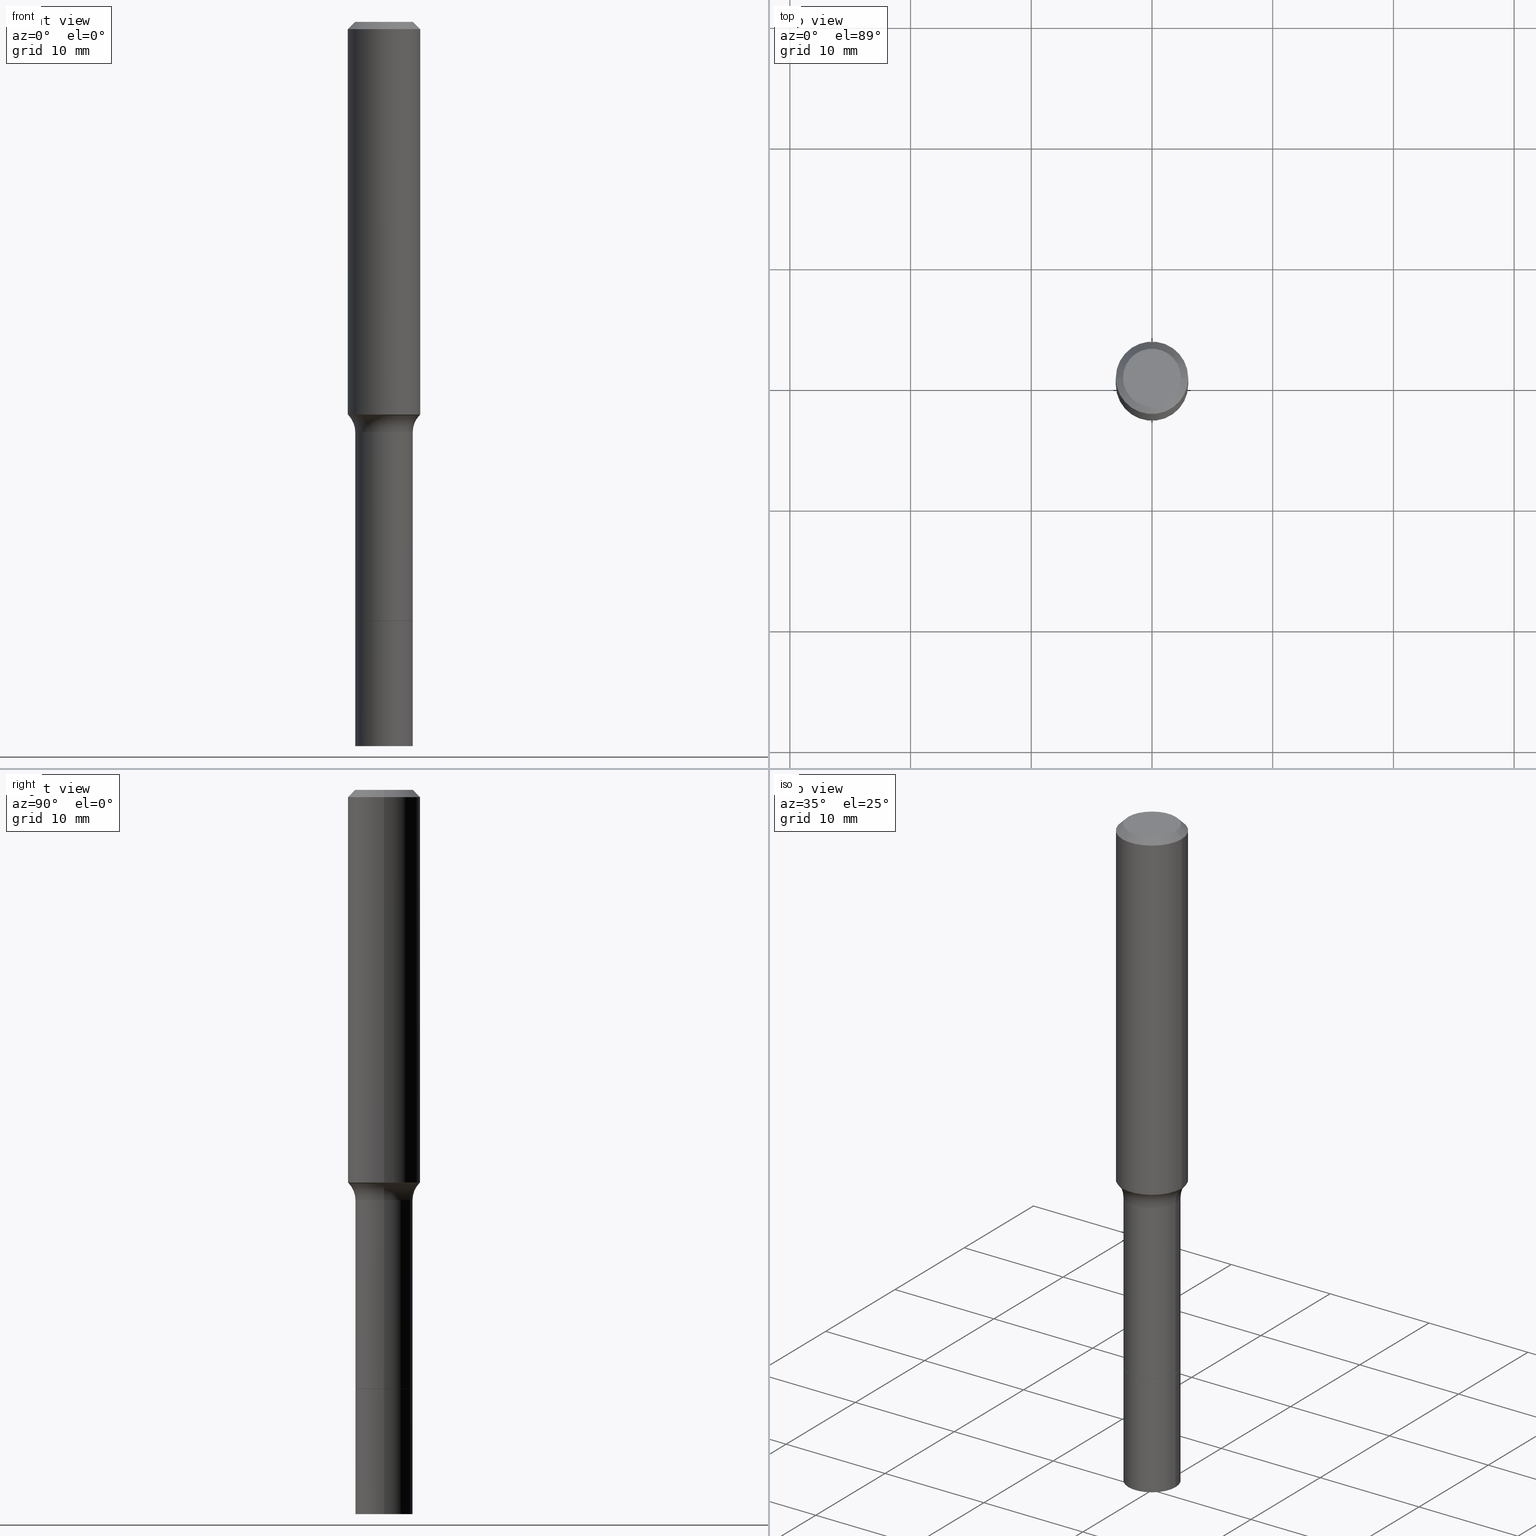
[diagram: canonical four-view strip — front | top / right | iso, engineering-drawing reading convention]
A machine part, canonical four-view strip (front | top / right | iso — engineering-drawing reading convention). The complete STEP part file that produces these views, byte-faithful:
ISO-10303-21;
HEADER;
FILE_DESCRIPTION (( 'STEP AP203' ),
    '1' );
FILE_NAME ('58502.STEP',
    '2025-04-01T15:24:02',
    ( '' ),
    ( '' ),
    'SwSTEP 2.0',
    'SolidWorks 2024',
    '' );
FILE_SCHEMA (( 'CONFIG_CONTROL_DESIGN' ));
ENDSEC;

DATA;
#1 = CALENDAR_DATE ( 2025, 1, 4 ) ;
#2 = ORIENTED_EDGE ( 'NONE', *, *, #451, .T. ) ;
#3 = APPLICATION_PROTOCOL_DEFINITION ( 'international standard', 'config_control_design', 1994, #499 ) ;
#4 = CIRCLE ( 'NONE', #76, 0.1152417038704663249 ) ;
#5 = EDGE_CURVE ( 'NONE', #223, #299, #167, .T. ) ;
#6 = SHAPE_DEFINITION_REPRESENTATION ( #363, #301 ) ;
#7 = CYLINDRICAL_SURFACE ( 'NONE', #48, 0.09374999999999997224 ) ;
#8 = DIRECTION ( 'NONE',  ( -2.445468806185136597E-29, 3.491481338843145583E-15, 1.000000000000000000 ) ) ;
#9 = DATE_AND_TIME ( #490, #508 ) ;
#10 =( NAMED_UNIT ( * ) PLANE_ANGLE_UNIT ( ) SI_UNIT ( $, .RADIAN. ) );
#11 = ORGANIZATION ( 'UNSPECIFIED', 'UNSPECIFIED', '' ) ;
#12 = DIRECTION ( 'NONE',  ( 1.000000000000000000, -6.982962677686261189E-15, 0.000000000000000000 ) ) ;
#13 = EDGE_CURVE ( 'NONE', #299, #155, #233, .T. ) ;
#14 = MANIFOLD_SOLID_BREP ( 'Body-Move/Copy2[2]', #110 ) ;
#15 = DIRECTION ( 'NONE',  ( -2.445468806185136597E-29, 3.491481338843145583E-15, 1.000000000000000000 ) ) ;
#16 = VECTOR ( 'NONE', #113, 39.37007874015748143 ) ;
#17 = CC_DESIGN_DATE_AND_TIME_ASSIGNMENT ( #120, #357, ( #410 ) ) ;
#18 = DIRECTION ( 'NONE',  ( -2.445468806185136597E-29, 3.491481338843145583E-15, 1.000000000000000000 ) ) ;
#19 = EDGE_CURVE ( 'NONE', #376, #143, #399, .T. ) ;
#20 = DIRECTION ( 'NONE',  ( 1.000000000000000000, -6.982962677686264344E-15, 0.000000000000000000 ) ) ;
#21 = CARTESIAN_POINT ( 'NONE',  ( 4.776489672240809845E-29, -6.819561351028432909E-15, -1.953200000000000269 ) ) ;
#22 = ORIENTED_EDGE ( 'NONE', *, *, #406, .T. ) ;
#23 = VERTEX_POINT ( 'NONE', #414 ) ;
#24 = TOROIDAL_SURFACE ( 'NONE', #338, 0.1737499999999999323, 0.07999999999999993228 ) ;
#25 = VECTOR ( 'NONE', #266, 39.37007874015748143 ) ;
#26 = DIRECTION ( 'NONE',  ( -2.445468806185136597E-29, 3.491481338843145583E-15, 1.000000000000000000 ) ) ;
#27 = ORIENTED_EDGE ( 'NONE', *, *, #147, .T. ) ;
#28 = LINE ( 'NONE', #343, #145 ) ;
#29 = EDGE_CURVE ( 'NONE', #341, #238, #459, .T. ) ;
#30 = DIRECTION ( 'NONE',  ( 1.000000000000000000, -6.982962677686273021E-15, 0.000000000000000000 ) ) ;
#31 = ORIENTED_EDGE ( 'NONE', *, *, #269, .T. ) ;
#32 = CARTESIAN_POINT ( 'NONE',  ( 4.776489672240809284E-29, -6.819561351028432120E-15, -1.953200000000000047 ) ) ;
#33 = ADVANCED_FACE ( 'NONE', ( #138 ), #81, .T. ) ;
#34 = CARTESIAN_POINT ( 'NONE',  ( 5.776686413970529753E-29, -8.247577218615279626E-15, -2.362200000000000077 ) ) ;
#35 = CIRCLE ( 'NONE', #187, 0.09324999999999998568 ) ;
#36 = EDGE_LOOP ( 'NONE', ( #427, #344, #117, #191 ) ) ;
#37 = DIRECTION ( 'NONE',  ( 1.000000000000000000, -6.982962677686269077E-15, 4.883557194083113462E-29 ) ) ;
#38 = CIRCLE ( 'NONE', #97, 0.09374999999999994449 ) ;
#39 = DIRECTION ( 'NONE',  ( -2.445468806185136597E-29, 3.491481338843145583E-15, 1.000000000000000000 ) ) ;
#40 = EDGE_LOOP ( 'NONE', ( #476, #303, #472, #308 ) ) ;
#41 = DIRECTION ( 'NONE',  ( 1.000000000000000000, -6.982962677686266711E-15, 0.000000000000000000 ) ) ;
#42 = PERSON_AND_ORGANIZATION ( #182, #11 ) ;
#43 = VERTEX_POINT ( 'NONE', #377 ) ;
#44 = DIRECTION ( 'NONE',  ( 1.000000000000000000, 0.000000000000000000, 0.000000000000000000 ) ) ;
#45 = CONICAL_SURFACE ( 'NONE', #163, 0.09324999999999998568, 0.7853981633972946241 ) ;
#46 =( CONVERSION_BASED_UNIT ( 'INCH', #203 ) LENGTH_UNIT ( ) NAMED_UNIT ( #318 ) );
#47 = EDGE_CURVE ( 'NONE', #480, #64, #139, .T. ) ;
#48 = AXIS2_PLACEMENT_3D ( 'NONE', #281, #206, #329 ) ;
#49 = PERSON_AND_ORGANIZATION ( #182, #11 ) ;
#50 = FACE_OUTER_BOUND ( 'NONE', #498, .T. ) ;
#51 = FACE_OUTER_BOUND ( 'NONE', #219, .T. ) ;
#52 = ADVANCED_FACE ( 'NONE', ( #353 ), #188, .T. ) ;
#53 = CALENDAR_DATE ( 2025, 1, 4 ) ;
#54 = CIRCLE ( 'NONE', #135, 0.07999999999999993228 ) ;
#55 = CARTESIAN_POINT ( 'NONE',  ( 0.1180999999999999966, -9.071566814582237199E-16, -0.02362000000000014435 ) ) ;
#56 = PRODUCT ( '58502', '58502', '', ( #362 ) ) ;
#57 = PERSON_AND_ORGANIZATION_ROLE ( 'creator' ) ;
#58 = DIRECTION ( 'NONE',  ( -2.445468806185136597E-29, 3.491481338843145583E-15, 1.000000000000000000 ) ) ;
#59 = EDGE_CURVE ( 'NONE', #430, #341, #217, .T. ) ;
#60 = CARTESIAN_POINT ( 'NONE',  ( 5.776686413970529753E-29, -8.247577218615279626E-15, -2.362200000000000077 ) ) ;
#61 = VERTEX_POINT ( 'NONE', #307 ) ;
#62 = EDGE_CURVE ( 'NONE', #43, #23, #127, .T. ) ;
#63 = CYLINDRICAL_SURFACE ( 'NONE', #457, 0.1181000000000000660 ) ;
#64 = VERTEX_POINT ( 'NONE', #270 ) ;
#65 = EDGE_LOOP ( 'NONE', ( #22, #422 ) ) ;
#66 = EDGE_LOOP ( 'NONE', ( #469, #396, #297, #227 ) ) ;
#67 = APPROVAL_PERSON_ORGANIZATION ( #124, #204, #447 ) ;
#68 = ORIENTED_EDGE ( 'NONE', *, *, #375, .T. ) ;
#69 = DIRECTION ( 'NONE',  ( -2.445468806185136597E-29, 3.491481338843145583E-15, 1.000000000000000000 ) ) ;
#70 = DIRECTION ( 'NONE',  ( 1.000000000000000000, -6.982962677686263555E-15, 0.000000000000000000 ) ) ;
#71 = ORIENTED_EDGE ( 'NONE', *, *, #192, .F. ) ;
#72 = DIRECTION ( 'NONE',  ( -2.445468806185136597E-29, 3.491481338843145583E-15, 1.000000000000000000 ) ) ;
#73 = CARTESIAN_POINT ( 'NONE',  ( -0.1152417038704663249, -3.662964008439745871E-15, -1.283640131195000089 ) ) ;
#74 = ORIENTED_EDGE ( 'NONE', *, *, #474, .F. ) ;
#75 = CYLINDRICAL_SURFACE ( 'NONE', #157, 0.1181000000000000660 ) ;
#76 = AXIS2_PLACEMENT_3D ( 'NONE', #95, #15, #205 ) ;
#77 = EDGE_LOOP ( 'NONE', ( #189, #272, #222, #355 ) ) ;
#78 = FACE_OUTER_BOUND ( 'NONE', #101, .T. ) ;
#79 = COORDINATED_UNIVERSAL_TIME_OFFSET ( 5, 0, .BEHIND. ) ;
#80 = ORIENTED_EDGE ( 'NONE', *, *, #435, .T. ) ;
#81 = CONICAL_SURFACE ( 'NONE', #515, 0.1180999999999999966, 0.7853981633974461696 ) ;
#82 = CARTESIAN_POINT ( 'NONE',  ( -0.1152417038704663388, -3.662964008439745082E-15, -1.283640131195000089 ) ) ;
#83 = EDGE_CURVE ( 'NONE', #61, #505, #425, .T. ) ;
#84 = CARTESIAN_POINT ( 'NONE',  ( 4.776489672240809845E-29, -6.819561351028432909E-15, -1.953200000000000269 ) ) ;
#85 = AXIS2_PLACEMENT_3D ( 'NONE', #494, #87, #248 ) ;
#86 = APPROVAL_STATUS ( 'not_yet_approved' ) ;
#87 = DIRECTION ( 'NONE',  ( -2.445468806185136597E-29, 3.491481338843145583E-15, 1.000000000000000000 ) ) ;
#88 = COORDINATED_UNIVERSAL_TIME_OFFSET ( 5, 0, .BEHIND. ) ;
#89 = CARTESIAN_POINT ( 'NONE',  ( -0.09447999999999998066, 7.009847083995354710E-16, -3.085620075132147757E-17 ) ) ;
#90 = APPROVAL_DATE_TIME ( #449, #204 ) ;
#91 = VECTOR ( 'NONE', #300, 39.37007874015748143 ) ;
#92 = DIRECTION ( 'NONE',  ( 1.000000000000000000, -6.982962677686266711E-15, 4.876176775795936353E-29 ) ) ;
#93 = EDGE_CURVE ( 'NONE', #430, #155, #511, .T. ) ;
#94 = CARTESIAN_POINT ( 'NONE',  ( 0.09447999999999998066, -7.704367267948738690E-16, -3.085620075131172158E-17 ) ) ;
#95 = CARTESIAN_POINT ( 'NONE',  ( 3.139101899204769565E-29, -4.481805563857510262E-15, -1.283640131195000089 ) ) ;
#96 = LOCAL_TIME ( 11, 24, 2.000000000000000000, #88 ) ;
#97 = AXIS2_PLACEMENT_3D ( 'NONE', #409, #18, #450 ) ;
#98 = CARTESIAN_POINT ( 'NONE',  ( 0.1181000000000000660, -8.246878922347485584E-16, 5.758764772215003944E-30 ) ) ;
#99 = AXIS2_PLACEMENT_3D ( 'NONE', #400, #332, #402 ) ;
#100 = DIRECTION ( 'NONE',  ( 1.000000000000000000, -6.982962677686266711E-15, 4.876176775795935793E-29 ) ) ;
#101 = EDGE_LOOP ( 'NONE', ( #121, #513 ) ) ;
#102 = FACE_OUTER_BOUND ( 'NONE', #393, .T. ) ;
#103 = LOCAL_TIME ( 11, 24, 2.000000000000000000, #289 ) ;
#104 = ORIENTED_EDGE ( 'NONE', *, *, #47, .T. ) ;
#105 = CC_DESIGN_APPROVAL ( #126, ( #410 ) ) ;
#106 = EDGE_CURVE ( 'NONE', #505, #430, #426, .T. ) ;
#107 = ORIENTED_EDGE ( 'NONE', *, *, #269, .F. ) ;
#108 = LINE ( 'NONE', #337, #91 ) ;
#109 = CARTESIAN_POINT ( 'NONE',  ( -0.1181000000000000660, 8.391509709326787887E-16, -5.809262341591047287E-30 ) ) ;
#110 = CLOSED_SHELL ( 'NONE', ( #423, #141, #417, #201, #386, #52, #482, #350, #224, #131, #33, #456, #330, #503 ) ) ;
#111 = ORIENTED_EDGE ( 'NONE', *, *, #83, .F. ) ;
#112 = CC_DESIGN_PERSON_AND_ORGANIZATION_ASSIGNMENT ( #271, #475, ( #410 ) ) ;
#113 = DIRECTION ( 'NONE',  ( -0.7071067811865460184, 2.468850131082241283E-15, -0.7071067811865490160 ) ) ;
#114 = ORIENTED_EDGE ( 'NONE', *, *, #292, .T. ) ;
#115 = DIRECTION ( 'NONE',  ( -2.445468806185136597E-29, 3.491481338843145583E-15, 1.000000000000000000 ) ) ;
#116 = APPROVAL_DATE_TIME ( #9, #408 ) ;
#117 = ORIENTED_EDGE ( 'NONE', *, *, #512, .T. ) ;
#118 = DIRECTION ( 'NONE',  ( 2.438088387897960049E-29, -3.491481338843145188E-15, -1.000000000000000000 ) ) ;
#119 = UNCERTAINTY_MEASURE_WITH_UNIT (LENGTH_MEASURE( 1.000000000000000082E-05 ), #46, 'distance_accuracy_value', 'NONE');
#120 = DATE_AND_TIME ( #162, #253 ) ;
#121 = ORIENTED_EDGE ( 'NONE', *, *, #258, .F. ) ;
#122 = PRODUCT_RELATED_PRODUCT_CATEGORY ( 'detail', '', ( #56 ) ) ;
#123 = AXIS2_PLACEMENT_3D ( 'NONE', #160, #486, #44 ) ;
#124 = PERSON_AND_ORGANIZATION ( #182, #11 ) ;
#125 = CARTESIAN_POINT ( 'NONE',  ( -0.1180999999999999966, -1.437635253250308379E-15, -0.02362000000000014435 ) ) ;
#126 = APPROVAL ( #436, 'UNSPECIFIED' ) ;
#127 = CIRCLE ( 'NONE', #194, 0.09375000000000001388 ) ;
#128 = DIRECTION ( 'NONE',  ( -2.445468806185136597E-29, 3.491481338843145583E-15, 1.000000000000000000 ) ) ;
#129 = DIRECTION ( 'NONE',  ( 1.000000000000000000, -6.982962677686263555E-15, 0.000000000000000000 ) ) ;
#130 = AXIS2_PLACEMENT_3D ( 'NONE', #347, #268, #196 ) ;
#131 = ADVANCED_FACE ( 'NONE', ( #312 ), #75, .T. ) ;
#132 = FACE_OUTER_BOUND ( 'NONE', #146, .T. ) ;
#133 = EDGE_LOOP ( 'NONE', ( #468, #181, #71, #339 ) ) ;
#134 = EDGE_CURVE ( 'NONE', #466, #302, #171, .T. ) ;
#135 = AXIS2_PLACEMENT_3D ( 'NONE', #420, #317, #506 ) ;
#136 = CIRCLE ( 'NONE', #434, 0.1180999999999999966 ) ;
#137 = CARTESIAN_POINT ( 'NONE',  ( 0.000000000000000000, 0.000000000000000000, 0.000000000000000000 ) ) ;
#138 = FACE_OUTER_BOUND ( 'NONE', #40, .T. ) ;
#139 = CIRCLE ( 'NONE', #440, 0.09374999999999994449 ) ;
#140 = CARTESIAN_POINT ( 'NONE',  ( -0.1181000000000001493, -3.631952688209820286E-15, -1.280574983861703320 ) ) ;
#141 = ADVANCED_FACE ( 'NONE', ( #132 ), #306, .T. ) ;
#142 = DIRECTION ( 'NONE',  ( -2.445468806185136597E-29, 3.491481338843145583E-15, 1.000000000000000000 ) ) ;
#143 = VERTEX_POINT ( 'NONE', #293 ) ;
#144 = FACE_OUTER_BOUND ( 'NONE', #418, .T. ) ;
#145 = VECTOR ( 'NONE', #154, 39.37007874015748143 ) ;
#146 = EDGE_LOOP ( 'NONE', ( #358, #114, #441, #198 ) ) ;
#147 = EDGE_CURVE ( 'NONE', #64, #480, #38, .T. ) ;
#148 = ORIENTED_EDGE ( 'NONE', *, *, #93, .F. ) ;
#149 = DIRECTION ( 'NONE',  ( -2.445468806185136597E-29, 3.491481338843145583E-15, 1.000000000000000000 ) ) ;
#150 = DIRECTION ( 'NONE',  ( -2.445468806185136597E-29, 3.491481338843145583E-15, 1.000000000000000000 ) ) ;
#151 = ORIENTED_EDGE ( 'NONE', *, *, #59, .T. ) ;
#152 = DIRECTION ( 'NONE',  ( -2.445468806185136597E-29, 3.491481338843145583E-15, 1.000000000000000000 ) ) ;
#153 = VERTEX_POINT ( 'NONE', #331 ) ;
#154 = DIRECTION ( 'NONE',  ( 0.6819983600624985876, -2.208861293262476197E-15, 0.7313537016191703488 ) ) ;
#155 = VERTEX_POINT ( 'NONE', #125 ) ;
#156 = DIRECTION ( 'NONE',  ( -2.445468806185136877E-29, 3.491481338843145188E-15, 1.000000000000000000 ) ) ;
#157 = AXIS2_PLACEMENT_3D ( 'NONE', #137, #213, #92 ) ;
#158 = PERSON_AND_ORGANIZATION ( #182, #11 ) ;
#159 = DIRECTION ( 'NONE',  ( -2.445468806185136877E-29, 3.491481338843145188E-15, 1.000000000000000000 ) ) ;
#160 = CARTESIAN_POINT ( 'NONE',  ( 0.000000000000000000, 0.000000000000000000, 0.000000000000000000 ) ) ;
#161 = CARTESIAN_POINT ( 'NONE',  ( 5.776197320209328408E-31, -8.246878922347560526E-17, -0.02362000000000014435 ) ) ;
#162 = CALENDAR_DATE ( 2025, 1, 4 ) ;
#163 = AXIS2_PLACEMENT_3D ( 'NONE', #84, #442, #401 ) ;
#164 = PERSON_AND_ORGANIZATION_ROLE ( 'design_owner' ) ;
#165 = LINE ( 'NONE', #328, #360 ) ;
#166 = CARTESIAN_POINT ( 'NONE',  ( -0.09324999999999998568, -6.154331022758027105E-15, -1.953200000000000269 ) ) ;
#167 = CIRCLE ( 'NONE', #340, 0.09447999999999998066 ) ;
#168 = CARTESIAN_POINT ( 'NONE',  ( 4.775266937837716483E-29, -6.817815610359010617E-15, -1.952700000000000102 ) ) ;
#169 = FACE_OUTER_BOUND ( 'NONE', #384, .T. ) ;
#170 = PRODUCT_DEFINITION_FORMATION_WITH_SPECIFIED_SOURCE ( 'ANY', '', #56, .NOT_KNOWN. ) ;
#171 = CIRCLE ( 'NONE', #489, 0.09375000000000001388 ) ;
#172 = DIRECTION ( 'NONE',  ( 1.000000000000000000, -6.982962677686269077E-15, 0.000000000000000000 ) ) ;
#173 = DIRECTION ( 'NONE',  ( -2.445468806185136597E-29, 3.491481338843145583E-15, 1.000000000000000000 ) ) ;
#174 = ADVANCED_FACE ( 'NONE', ( #285 ), #453, .T. ) ;
#175 = ORIENTED_EDGE ( 'NONE', *, *, #106, .T. ) ;
#176 = AXIS2_PLACEMENT_3D ( 'NONE', #21, #173, #356 ) ;
#177 = VECTOR ( 'NONE', #387, 39.37007874015748143 ) ;
#178 = DIRECTION ( 'NONE',  ( -2.445468806185136877E-29, 3.491481338843145188E-15, 1.000000000000000000 ) ) ;
#179 = EDGE_CURVE ( 'NONE', #341, #430, #373, .T. ) ;
#180 = DIRECTION ( 'NONE',  ( 1.000000000000000000, -6.982962677686264344E-15, 0.000000000000000000 ) ) ;
#181 = ORIENTED_EDGE ( 'NONE', *, *, #93, .T. ) ;
#182 = PERSON ( 'UNSPECIFIED', 'UNSPECIFIED', 'UNSPECIFIED', ('UNSPECIFIED'), ('UNSPECIFIED'), ('UNSPECIFIED') ) ;
#183 = CARTESIAN_POINT ( 'NONE',  ( 5.776686413970529753E-29, -8.247577218615279626E-15, -2.362200000000000077 ) ) ;
#184 = DIRECTION ( 'NONE',  ( -2.445468806185136597E-29, 3.491481338843145583E-15, 1.000000000000000000 ) ) ;
#185 = EDGE_LOOP ( 'NONE', ( #107, #68, #104, #74 ) ) ;
#186 = PLANE ( 'NONE',  #487 ) ;
#187 = AXIS2_PLACEMENT_3D ( 'NONE', #455, #324, #172 ) ;
#188 = CYLINDRICAL_SURFACE ( 'NONE', #249, 0.09374999999999997224 ) ;
#189 = ORIENTED_EDGE ( 'NONE', *, *, #19, .T. ) ;
#190 = CARTESIAN_POINT ( 'NONE',  ( 4.776489672240809845E-29, -6.819561351028432909E-15, -1.953200000000000269 ) ) ;
#191 = ORIENTED_EDGE ( 'NONE', *, *, #243, .F. ) ;
#192 = EDGE_CURVE ( 'NONE', #238, #155, #136, .T. ) ;
#193 = PERSON_AND_ORGANIZATION ( #182, #11 ) ;
#194 = AXIS2_PLACEMENT_3D ( 'NONE', #504, #142, #464 ) ;
#195 = ORIENTED_EDGE ( 'NONE', *, *, #474, .T. ) ;
#196 = DIRECTION ( 'NONE',  ( 1.000000000000000000, -6.982962677686267499E-15, 0.000000000000000000 ) ) ;
#197 = PERSON_AND_ORGANIZATION_ROLE ( 'design_supplier' ) ;
#198 = ORIENTED_EDGE ( 'NONE', *, *, #13, .F. ) ;
#199 = CC_DESIGN_PERSON_AND_ORGANIZATION_ASSIGNMENT ( #445, #164, ( #56 ) ) ;
#200 = DATE_AND_TIME ( #247, #103 ) ;
#201 = ADVANCED_FACE ( 'NONE', ( #169 ), #413, .T. ) ;
#202 = DATE_AND_TIME ( #1, #210 ) ;
#203 = LENGTH_MEASURE_WITH_UNIT ( LENGTH_MEASURE( 0.02539999999999999897 ), #321 );
#204 = APPROVAL ( #86, 'UNSPECIFIED' ) ;
#205 = DIRECTION ( 'NONE',  ( 1.000000000000000000, -6.982962677686263555E-15, 0.000000000000000000 ) ) ;
#206 = DIRECTION ( 'NONE',  ( -2.445468806185136597E-29, 3.491481338843145583E-15, 1.000000000000000000 ) ) ;
#207 = LINE ( 'NONE', #369, #310 ) ;
#208 = AXIS2_PLACEMENT_3D ( 'NONE', #60, #128, #448 ) ;
#209 = CARTESIAN_POINT ( 'NONE',  ( -0.09374999999999997224, 6.661338147750937270E-16, -4.611501647113972594E-30 ) ) ;
#210 = LOCAL_TIME ( 11, 24, 2.000000000000000000, #315 ) ;
#211 = DIRECTION ( 'NONE',  ( -2.445468806185136597E-29, 3.491481338843145583E-15, 1.000000000000000000 ) ) ;
#212 = AXIS2_PLACEMENT_3D ( 'NONE', #416, #26, #180 ) ;
#213 = DIRECTION ( 'NONE',  ( -2.445468806185136597E-29, 3.491481338843145583E-15, 1.000000000000000000 ) ) ;
#214 = DIRECTION ( 'NONE',  ( 1.000000000000000000, -6.982962677686261189E-15, 0.000000000000000000 ) ) ;
#215 = CC_DESIGN_APPROVAL ( #204, ( #218 ) ) ;
#216 = DIRECTION ( 'NONE',  ( 1.000000000000000000, -6.982962677686266711E-15, 4.876176775795936353E-29 ) ) ;
#217 = CIRCLE ( 'NONE', #212, 0.1181000000000001493 ) ;
#218 = PRODUCT_DEFINITION ( 'UNKNOWN', '', #170, #439 ) ;
#219 = EDGE_LOOP ( 'NONE', ( #351, #31, #2, #226 ) ) ;
#220 = DIRECTION ( 'NONE',  ( 2.445468806185136597E-29, -3.491481338843145583E-15, -1.000000000000000000 ) ) ;
#221 = VECTOR ( 'NONE', #156, 39.37007874015748143 ) ;
#222 = ORIENTED_EDGE ( 'NONE', *, *, #62, .F. ) ;
#223 = VERTEX_POINT ( 'NONE', #94 ) ;
#224 = ADVANCED_FACE ( 'NONE', ( #51 ), #444, .T. ) ;
#225 = DIRECTION ( 'NONE',  ( 1.000000000000000000, -6.982962677686267499E-15, 4.875432709231658792E-29 ) ) ;
#226 = ORIENTED_EDGE ( 'NONE', *, *, #59, .F. ) ;
#227 = ORIENTED_EDGE ( 'NONE', *, *, #47, .F. ) ;
#228 = DIRECTION ( 'NONE',  ( 2.438088387897960049E-29, -3.491481338843145188E-15, -1.000000000000000000 ) ) ;
#229 = ORIENTED_EDGE ( 'NONE', *, *, #323, .F. ) ;
#230 = EDGE_LOOP ( 'NONE', ( #320, #381 ) ) ;
#231 = DIRECTION ( 'NONE',  ( 1.000000000000000000, -6.982962677686269077E-15, 4.883557194083113462E-29 ) ) ;
#232 = CIRCLE ( 'NONE', #319, 0.09324999999999998568 ) ;
#233 = LINE ( 'NONE', #421, #16 ) ;
#234 = APPROVAL_ROLE ( '' ) ;
#235 = EDGE_LOOP ( 'NONE', ( #148, #151, #349, #229 ) ) ;
#236 = FACE_OUTER_BOUND ( 'NONE', #133, .T. ) ;
#237 = APPROVAL_ROLE ( '' ) ;
#238 = VERTEX_POINT ( 'NONE', #55 ) ;
#239 = CARTESIAN_POINT ( 'NONE',  ( 0.1737499999999999323, -5.885590092887885113E-15, -1.338200000000000056 ) ) ;
#240 = EDGE_CURVE ( 'NONE', #153, #466, #207, .T. ) ;
#241 = CARTESIAN_POINT ( 'NONE',  ( 3.772893820736570314E-46, -5.386692455541008845E-32, -1.542810037565835988E-17 ) ) ;
#242 = CIRCLE ( 'NONE', #274, 0.09375000000000001388 ) ;
#243 = EDGE_CURVE ( 'NONE', #23, #43, #367, .T. ) ;
#244 = DIRECTION ( 'NONE',  ( 1.000000000000000000, -6.982962677686265133E-15, 0.000000000000000000 ) ) ;
#245 = DIRECTION ( 'NONE',  ( -1.000000000000000000, 6.982962677686266711E-15, 0.000000000000000000 ) ) ;
#246 = CARTESIAN_POINT ( 'NONE',  ( -0.09375000000000001388, -5.078924154224359757E-15, -1.952700000000000102 ) ) ;
#247 = CALENDAR_DATE ( 2025, 1, 4 ) ;
#248 = DIRECTION ( 'NONE',  ( 1.000000000000000000, -6.982962677686267499E-15, 0.000000000000000000 ) ) ;
#249 = AXIS2_PLACEMENT_3D ( 'NONE', #461, #184, #100 ) ;
#250 = LINE ( 'NONE', #492, #296 ) ;
#251 = APPLICATION_CONTEXT ( 'configuration controlled 3d designs of mechanical parts and assemblies' ) ;
#252 = DIRECTION ( 'NONE',  ( -2.445468806185136597E-29, 3.491481338843145583E-15, 1.000000000000000000 ) ) ;
#253 = LOCAL_TIME ( 11, 24, 2.000000000000000000, #275 ) ;
#254 = AXIS2_PLACEMENT_3D ( 'NONE', #364, #370, #245 ) ;
#255 = DIRECTION ( 'NONE',  ( 1.000000000000000000, -6.982962677686266711E-15, 0.000000000000000000 ) ) ;
#256 = ORIENTED_EDGE ( 'NONE', *, *, #395, .T. ) ;
#257 = ORIENTED_EDGE ( 'NONE', *, *, #240, .F. ) ;
#258 = EDGE_CURVE ( 'NONE', #153, #462, #35, .T. ) ;
#259 = ORIENTED_EDGE ( 'NONE', *, *, #435, .F. ) ;
#260 = CARTESIAN_POINT ( 'NONE',  ( 3.272526356436949336E-29, -4.672300327639896745E-15, -1.338200000000000056 ) ) ;
#261 = AXIS2_PLACEMENT_3D ( 'NONE', #32, #118, #470 ) ;
#262 = AXIS2_PLACEMENT_3D ( 'NONE', #183, #228, #385 ) ;
#263 = CARTESIAN_POINT ( 'NONE',  ( 3.139101899204769565E-29, -4.481805563857510262E-15, -1.283640131195000089 ) ) ;
#264 = ORIENTED_EDGE ( 'NONE', *, *, #179, .F. ) ;
#265 = PLANE ( 'NONE',  #325 ) ;
#266 = DIRECTION ( 'NONE',  ( -2.445468806185136877E-29, 3.491481338843145188E-15, 1.000000000000000000 ) ) ;
#267 = ORIENTED_EDGE ( 'NONE', *, *, #258, .T. ) ;
#268 = DIRECTION ( 'NONE',  ( -2.445468806185136597E-29, 3.491481338843145583E-15, 1.000000000000000000 ) ) ;
#269 = EDGE_CURVE ( 'NONE', #505, #61, #4, .T. ) ;
#270 = CARTESIAN_POINT ( 'NONE',  ( 0.09374999999999994449, -5.326953078672984249E-15, -1.338200000000000056 ) ) ;
#271 = PERSON_AND_ORGANIZATION ( #182, #11 ) ;
#272 = ORIENTED_EDGE ( 'NONE', *, *, #287, .T. ) ;
#273 = FACE_OUTER_BOUND ( 'NONE', #77, .T. ) ;
#274 = AXIS2_PLACEMENT_3D ( 'NONE', #168, #290, #214 ) ;
#275 = COORDINATED_UNIVERSAL_TIME_OFFSET ( 5, 0, .BEHIND. ) ;
#276 = EDGE_LOOP ( 'NONE', ( #316, #507 ) ) ;
#277 = CARTESIAN_POINT ( 'NONE',  ( 7.807781452751668233E-30, -1.254164767941989792E-14, -1.953200000000000269 ) ) ;
#278 = APPROVAL_DATE_TIME ( #202, #126 ) ;
#279 = ORIENTED_EDGE ( 'NONE', *, *, #322, .F. ) ;
#280 = CARTESIAN_POINT ( 'NONE',  ( -0.09374999999999994449, -5.078924154224360545E-15, -1.338200000000000056 ) ) ;
#281 = CARTESIAN_POINT ( 'NONE',  ( 0.000000000000000000, 0.000000000000000000, 0.000000000000000000 ) ) ;
#282 = CC_DESIGN_APPROVAL ( #408, ( #170 ) ) ;
#283 = AXIS2_PLACEMENT_3D ( 'NONE', #263, #429, #70 ) ;
#284 =( NAMED_UNIT ( * ) SI_UNIT ( $, .STERADIAN. ) SOLID_ANGLE_UNIT ( ) );
#285 = FACE_OUTER_BOUND ( 'NONE', #36, .T. ) ;
#286 = APPLICATION_PROTOCOL_DEFINITION ( 'international standard', 'config_control_design', 1994, #251 ) ;
#287 = EDGE_CURVE ( 'NONE', #143, #23, #165, .T. ) ;
#288 = CARTESIAN_POINT ( 'NONE',  ( 4.776489672240809284E-29, -6.819561351028432120E-15, -1.953200000000000047 ) ) ;
#289 = COORDINATED_UNIVERSAL_TIME_OFFSET ( 5, 0, .BEHIND. ) ;
#290 = DIRECTION ( 'NONE',  ( -2.445468806185136597E-29, 3.491481338843145583E-15, 1.000000000000000000 ) ) ;
#291 = CARTESIAN_POINT ( 'NONE',  ( 4.775266937837716483E-29, -6.817815610359010617E-15, -1.952700000000000102 ) ) ;
#292 = EDGE_CURVE ( 'NONE', #223, #238, #250, .T. ) ;
#293 = CARTESIAN_POINT ( 'NONE',  ( -0.09375000000000013878, -6.867435470046759977E-15, -2.362200000000000077 ) ) ;
#294 = EDGE_CURVE ( 'NONE', #143, #376, #496, .T. ) ;
#295 = ORIENTED_EDGE ( 'NONE', *, *, #147, .F. ) ;
#296 = VECTOR ( 'NONE', #407, 39.37007874015748143 ) ;
#297 = ORIENTED_EDGE ( 'NONE', *, *, #412, .T. ) ;
#298 = DIRECTION ( 'NONE',  ( -2.445468806185136597E-29, 3.491481338843145583E-15, 1.000000000000000000 ) ) ;
#299 = VERTEX_POINT ( 'NONE', #89 ) ;
#300 = DIRECTION ( 'NONE',  ( -0.7071067811864388819, 7.493145998869961307E-15, 0.7071067811866561525 ) ) ;
#301 = ADVANCED_BREP_SHAPE_REPRESENTATION ( '58502', ( #346, #14, #123 ), #443 ) ;
#302 = VERTEX_POINT ( 'NONE', #246 ) ;
#303 = ORIENTED_EDGE ( 'NONE', *, *, #406, .F. ) ;
#304 = FACE_OUTER_BOUND ( 'NONE', #65, .T. ) ;
#305 = CIRCLE ( 'NONE', #465, 0.09447999999999998066 ) ;
#306 = CONICAL_SURFACE ( 'NONE', #254, 0.1180999999999999966, 0.7853981633974461696 ) ;
#307 = CARTESIAN_POINT ( 'NONE',  ( 0.1152417038704663388, -5.286534080897948923E-15, -1.283640131195000089 ) ) ;
#308 = ORIENTED_EDGE ( 'NONE', *, *, #323, .T. ) ;
#309 = PLANE ( 'NONE',  #261 ) ;
#310 = VECTOR ( 'NONE', #366, 39.37007874015748143 ) ;
#311 = CLOSED_SHELL ( 'NONE', ( #326, #335, #174, #365 ) ) ;
#312 = FACE_OUTER_BOUND ( 'NONE', #235, .T. ) ;
#313 = ORIENTED_EDGE ( 'NONE', *, *, #412, .F. ) ;
#314 = DIRECTION ( 'NONE',  ( -2.438088387897960049E-29, 3.491481338843145188E-15, 1.000000000000000000 ) ) ;
#315 = COORDINATED_UNIVERSAL_TIME_OFFSET ( 5, 0, .BEHIND. ) ;
#316 = ORIENTED_EDGE ( 'NONE', *, *, #19, .F. ) ;
#317 = DIRECTION ( 'NONE',  ( 7.105427357601001859E-15, 1.000000000000000000, -3.491481338843145583E-15 ) ) ;
#318 = DIMENSIONAL_EXPONENTS ( 1.000000000000000000, 0.000000000000000000, 0.000000000000000000, 0.000000000000000000, 0.000000000000000000, 0.000000000000000000, 0.000000000000000000 ) ;
#319 = AXIS2_PLACEMENT_3D ( 'NONE', #190, #69, #424 ) ;
#320 = ORIENTED_EDGE ( 'NONE', *, *, #62, .T. ) ;
#321 =( LENGTH_UNIT ( ) NAMED_UNIT ( * ) SI_UNIT ( $, .METRE. ) );
#322 = EDGE_CURVE ( 'NONE', #302, #466, #242, .T. ) ;
#323 = EDGE_CURVE ( 'NONE', #155, #238, #478, .T. ) ;
#324 = DIRECTION ( 'NONE',  ( -2.445468806185136597E-29, 3.491481338843145583E-15, 1.000000000000000000 ) ) ;
#325 = AXIS2_PLACEMENT_3D ( 'NONE', #241, #481, #361 ) ;
#326 = ADVANCED_FACE ( 'NONE', ( #273 ), #463, .T. ) ;
#327 = CARTESIAN_POINT ( 'NONE',  ( 0.09375000000000001388, -7.472468361392097332E-15, -1.952700000000000102 ) ) ;
#328 = CARTESIAN_POINT ( 'NONE',  ( -0.09375000000000006939, -6.153427536253337407E-15, -1.953200000000000047 ) ) ;
#329 = DIRECTION ( 'NONE',  ( 1.000000000000000000, -6.982962677686266711E-15, 4.876176775795935793E-29 ) ) ;
#330 = ADVANCED_FACE ( 'NONE', ( #78 ), #186, .F. ) ;
#331 = CARTESIAN_POINT ( 'NONE',  ( 0.09324999999999998568, -7.470722620722678195E-15, -1.953200000000000269 ) ) ;
#332 = DIRECTION ( 'NONE',  ( -2.445468806185136597E-29, 3.491481338843145583E-15, 1.000000000000000000 ) ) ;
#333 = VECTOR ( 'NONE', #159, 39.37007874015748143 ) ;
#334 = DIRECTION ( 'NONE',  ( 1.000000000000000000, -6.982962677686266711E-15, 0.000000000000000000 ) ) ;
#335 = ADVANCED_FACE ( 'NONE', ( #510 ), #473, .T. ) ;
#336 = VECTOR ( 'NONE', #178, 39.37007874015748143 ) ;
#337 = CARTESIAN_POINT ( 'NONE',  ( -0.09324999999999998568, -6.156980249932139095E-15, -1.953200000000000269 ) ) ;
#338 = AXIS2_PLACEMENT_3D ( 'NONE', #374, #115, #37 ) ;
#339 = ORIENTED_EDGE ( 'NONE', *, *, #29, .F. ) ;
#340 = AXIS2_PLACEMENT_3D ( 'NONE', #502, #39, #383 ) ;
#341 = VERTEX_POINT ( 'NONE', #514 ) ;
#342 = ORIENTED_EDGE ( 'NONE', *, *, #134, .F. ) ;
#343 = CARTESIAN_POINT ( 'NONE',  ( 0.1152417038704663249, -5.286534080897948923E-15, -1.283640131195000089 ) ) ;
#344 = ORIENTED_EDGE ( 'NONE', *, *, #294, .T. ) ;
#345 = ORIENTED_EDGE ( 'NONE', *, *, #83, .T. ) ;
#346 = MANIFOLD_SOLID_BREP ( 'Body-Move/Copy2[1]', #311 ) ;
#347 = CARTESIAN_POINT ( 'NONE',  ( 4.776489672240809284E-29, -6.819561351028432120E-15, -1.953200000000000047 ) ) ;
#348 = AXIS2_PLACEMENT_3D ( 'NONE', #371, #428, #41 ) ;
#349 = ORIENTED_EDGE ( 'NONE', *, *, #29, .T. ) ;
#350 = ADVANCED_FACE ( 'NONE', ( #102 ), #419, .F. ) ;
#351 = ORIENTED_EDGE ( 'NONE', *, *, #106, .F. ) ;
#352 = CARTESIAN_POINT ( 'NONE',  ( 7.545787641473140628E-46, -1.077338491108201769E-31, -3.085620075131671975E-17 ) ) ;
#353 = FACE_OUTER_BOUND ( 'NONE', #388, .T. ) ;
#354 = APPROVAL_STATUS ( 'not_yet_approved' ) ;
#355 = ORIENTED_EDGE ( 'NONE', *, *, #512, .F. ) ;
#356 = DIRECTION ( 'NONE',  ( 1.000000000000000000, -6.982962677686269077E-15, 0.000000000000000000 ) ) ;
#357 = DATE_TIME_ROLE ( 'classification_date' ) ;
#358 = ORIENTED_EDGE ( 'NONE', *, *, #5, .F. ) ;
#359 = LINE ( 'NONE', #209, #221 ) ;
#360 = VECTOR ( 'NONE', #495, 39.37007874015748143 ) ;
#361 = DIRECTION ( 'NONE',  ( -1.000000000000000000, 6.982962677686265922E-15, -4.876176775795935793E-29 ) ) ;
#362 = MECHANICAL_CONTEXT ( 'NONE', #251, 'mechanical' ) ;
#363 = PRODUCT_DEFINITION_SHAPE ( 'NONE', 'NONE',  #218 ) ;
#364 = CARTESIAN_POINT ( 'NONE',  ( 5.776197320209328408E-31, -8.246878922347560526E-17, -0.02362000000000014435 ) ) ;
#365 = ADVANCED_FACE ( 'NONE', ( #477 ), #309, .F. ) ;
#366 = DIRECTION ( 'NONE',  ( 0.7071067811864388819, -2.468850131081119129E-15, 0.7071067811866561525 ) ) ;
#367 = CIRCLE ( 'NONE', #372, 0.09375000000000001388 ) ;
#368 = AXIS2_PLACEMENT_3D ( 'NONE', #405, #58, #20 ) ;
#369 = CARTESIAN_POINT ( 'NONE',  ( 0.09324999999999998568, -7.470722620722678195E-15, -1.953200000000000269 ) ) ;
#370 = DIRECTION ( 'NONE',  ( 2.445468806185136597E-29, -3.491481338843145583E-15, -1.000000000000000000 ) ) ;
#371 = CARTESIAN_POINT ( 'NONE',  ( 5.776197320209328408E-31, -8.246878922347560526E-17, -0.02362000000000014435 ) ) ;
#372 = AXIS2_PLACEMENT_3D ( 'NONE', #288, #211, #12 ) ;
#373 = CIRCLE ( 'NONE', #368, 0.1181000000000001493 ) ;
#374 = CARTESIAN_POINT ( 'NONE',  ( 3.272526356436949336E-29, -4.672300327639896745E-15, -1.338200000000000056 ) ) ;
#375 = EDGE_CURVE ( 'NONE', #505, #480, #54, .T. ) ;
#376 = VERTEX_POINT ( 'NONE', #389 ) ;
#377 = CARTESIAN_POINT ( 'NONE',  ( 0.09375000000000001388, -7.474214102061519624E-15, -1.953200000000000047 ) ) ;
#378 = CC_DESIGN_PERSON_AND_ORGANIZATION_ASSIGNMENT ( #42, #483, ( #170 ) ) ;
#379 = CIRCLE ( 'NONE', #403, 0.07999999999999993228 ) ;
#380 = CARTESIAN_POINT ( 'NONE',  ( 3.272526356436949336E-29, -4.672300327639896745E-15, -1.338200000000000056 ) ) ;
#381 = ORIENTED_EDGE ( 'NONE', *, *, #243, .T. ) ;
#382 = CARTESIAN_POINT ( 'NONE',  ( 0.09374999999999997224, -6.546527510330873069E-16, 4.571415727308688405E-30 ) ) ;
#383 = DIRECTION ( 'NONE',  ( 1.000000000000000000, -6.982962677686267499E-15, 4.875432709231658792E-29 ) ) ;
#384 = EDGE_LOOP ( 'NONE', ( #345, #175, #264, #501 ) ) ;
#385 = DIRECTION ( 'NONE',  ( -1.000000000000000000, 6.982962677686265922E-15, -4.876176775795935793E-29 ) ) ;
#386 = ADVANCED_FACE ( 'NONE', ( #518 ), #24, .F. ) ;
#387 = DIRECTION ( 'NONE',  ( -0.6819983600624985876, 7.399397606724288154E-15, 0.7313537016191703488 ) ) ;
#388 = EDGE_LOOP ( 'NONE', ( #517, #437, #295, #313 ) ) ;
#389 = CARTESIAN_POINT ( 'NONE',  ( 0.09375000000000013878, -8.902229969648367919E-15, -2.362200000000000077 ) ) ;
#390 = CONICAL_SURFACE ( 'NONE', #176, 0.09324999999999998568, 0.7853981633972946241 ) ;
#391 = CARTESIAN_POINT ( 'NONE',  ( 5.776197320209328408E-31, -8.246878922347560526E-17, -0.02362000000000014435 ) ) ;
#392 = DATE_TIME_ROLE ( 'creation_date' ) ;
#393 = EDGE_LOOP ( 'NONE', ( #415, #111, #195, #27 ) ) ;
#394 = DIRECTION ( 'NONE',  ( -2.445468806185136877E-29, 3.491481338843145188E-15, 1.000000000000000000 ) ) ;
#395 = EDGE_CURVE ( 'NONE', #462, #153, #232, .T. ) ;
#396 = ORIENTED_EDGE ( 'NONE', *, *, #322, .T. ) ;
#397 = LINE ( 'NONE', #493, #333 ) ;
#398 = APPROVAL_PERSON_ORGANIZATION ( #158, #408, #234 ) ;
#399 = CIRCLE ( 'NONE', #460, 0.09375000000000013878 ) ;
#400 = CARTESIAN_POINT ( 'NONE',  ( 3.139101899204769565E-29, -4.481805563857510262E-15, -1.283640131195000089 ) ) ;
#401 = DIRECTION ( 'NONE',  ( 1.000000000000000000, -6.982962677686269077E-15, 0.000000000000000000 ) ) ;
#402 = DIRECTION ( 'NONE',  ( 1.000000000000000000, -6.982962677686263555E-15, 0.000000000000000000 ) ) ;
#403 = AXIS2_PLACEMENT_3D ( 'NONE', #239, #491, #244 ) ;
#404 = PERSON_AND_ORGANIZATION ( #182, #11 ) ;
#405 = CARTESIAN_POINT ( 'NONE',  ( 3.131606177014830637E-29, -4.471103659142499272E-15, -1.280574983861703320 ) ) ;
#406 = EDGE_CURVE ( 'NONE', #299, #223, #305, .T. ) ;
#407 = DIRECTION ( 'NONE',  ( 0.7071067811865460184, -7.319954787623251312E-15, -0.7071067811865490160 ) ) ;
#408 = APPROVAL ( #354, 'UNSPECIFIED' ) ;
#409 = CARTESIAN_POINT ( 'NONE',  ( 3.272526356436949336E-29, -4.672300327639896745E-15, -1.338200000000000056 ) ) ;
#410 = SECURITY_CLASSIFICATION ( '', '', #485 ) ;
#411 = CC_DESIGN_SECURITY_CLASSIFICATION ( #410, ( #170 ) ) ;
#412 = EDGE_CURVE ( 'NONE', #466, #64, #431, .T. ) ;
#413 = CONICAL_SURFACE ( 'NONE', #99, 0.1152417038704663249, 0.7504915783575618615 ) ;
#414 = CARTESIAN_POINT ( 'NONE',  ( -0.09375000000000001388, -6.867435470046760766E-15, -1.953200000000000047 ) ) ;
#415 = ORIENTED_EDGE ( 'NONE', *, *, #375, .F. ) ;
#416 = CARTESIAN_POINT ( 'NONE',  ( 3.131606177014830637E-29, -4.471103659142499272E-15, -1.280574983861703320 ) ) ;
#417 = ADVANCED_FACE ( 'NONE', ( #236 ), #63, .T. ) ;
#418 = EDGE_LOOP ( 'NONE', ( #267, #80, #342, #257 ) ) ;
#419 = TOROIDAL_SURFACE ( 'NONE', #452, 0.1737499999999999323, 0.07999999999999993228 ) ;
#420 = CARTESIAN_POINT ( 'NONE',  ( -0.1737499999999999323, -3.437732324256723745E-15, -1.338200000000000056 ) ) ;
#421 = CARTESIAN_POINT ( 'NONE',  ( -0.1180999999999999966, 7.422191030112725094E-16, -0.02362000000000014435 ) ) ;
#422 = ORIENTED_EDGE ( 'NONE', *, *, #5, .T. ) ;
#423 = ADVANCED_FACE ( 'NONE', ( #144 ), #390, .T. ) ;
#424 = DIRECTION ( 'NONE',  ( 1.000000000000000000, -6.982962677686269077E-15, 0.000000000000000000 ) ) ;
#425 = CIRCLE ( 'NONE', #283, 0.1152417038704663249 ) ;
#426 = LINE ( 'NONE', #73, #177 ) ;
#427 = ORIENTED_EDGE ( 'NONE', *, *, #287, .F. ) ;
#428 = DIRECTION ( 'NONE',  ( -2.445468806185136597E-29, 3.491481338843145583E-15, 1.000000000000000000 ) ) ;
#429 = DIRECTION ( 'NONE',  ( -2.445468806185136597E-29, 3.491481338843145583E-15, 1.000000000000000000 ) ) ;
#430 = VERTEX_POINT ( 'NONE', #140 ) ;
#431 = LINE ( 'NONE', #382, #432 ) ;
#432 = VECTOR ( 'NONE', #394, 39.37007874015748143 ) ;
#433 = APPROVAL_PERSON_ORGANIZATION ( #193, #126, #237 ) ;
#434 = AXIS2_PLACEMENT_3D ( 'NONE', #161, #446, #334 ) ;
#435 = EDGE_CURVE ( 'NONE', #462, #302, #108, .T. ) ;
#436 = APPROVAL_STATUS ( 'not_yet_approved' ) ;
#437 = ORIENTED_EDGE ( 'NONE', *, *, #479, .T. ) ;
#438 = FACE_OUTER_BOUND ( 'NONE', #66, .T. ) ;
#439 = DESIGN_CONTEXT ( 'detailed design', #499, 'design' ) ;
#440 = AXIS2_PLACEMENT_3D ( 'NONE', #380, #150, #255 ) ;
#441 = ORIENTED_EDGE ( 'NONE', *, *, #192, .T. ) ;
#442 = DIRECTION ( 'NONE',  ( -2.445468806185136597E-29, 3.491481338843145583E-15, 1.000000000000000000 ) ) ;
#443 =( GEOMETRIC_REPRESENTATION_CONTEXT ( 3 ) GLOBAL_UNCERTAINTY_ASSIGNED_CONTEXT ( ( #119 ) ) GLOBAL_UNIT_ASSIGNED_CONTEXT ( ( #46, #10, #284 ) ) REPRESENTATION_CONTEXT ( 'NONE', 'WORKASPACE' ) );
#444 = CONICAL_SURFACE ( 'NONE', #516, 0.1152417038704663249, 0.7504915783575618615 ) ;
#445 = PERSON_AND_ORGANIZATION ( #182, #11 ) ;
#446 = DIRECTION ( 'NONE',  ( -2.445468806185136597E-29, 3.491481338843145583E-15, 1.000000000000000000 ) ) ;
#447 = APPROVAL_ROLE ( '' ) ;
#448 = DIRECTION ( 'NONE',  ( 1.000000000000000000, -6.982962677686273021E-15, 0.000000000000000000 ) ) ;
#449 = DATE_AND_TIME ( #53, #96 ) ;
#450 = DIRECTION ( 'NONE',  ( 1.000000000000000000, -6.982962677686266711E-15, 0.000000000000000000 ) ) ;
#451 = EDGE_CURVE ( 'NONE', #61, #341, #28, .T. ) ;
#452 = AXIS2_PLACEMENT_3D ( 'NONE', #260, #149, #231 ) ;
#453 = CYLINDRICAL_SURFACE ( 'NONE', #85, 0.09375000000000006939 ) ;
#454 = CC_DESIGN_DATE_AND_TIME_ASSIGNMENT ( #200, #392, ( #218 ) ) ;
#455 = CARTESIAN_POINT ( 'NONE',  ( 4.776489672240809845E-29, -6.819561351028432909E-15, -1.953200000000000269 ) ) ;
#456 = ADVANCED_FACE ( 'NONE', ( #304 ), #265, .F. ) ;
#457 = AXIS2_PLACEMENT_3D ( 'NONE', #500, #72, #216 ) ;
#458 = CC_DESIGN_PERSON_AND_ORGANIZATION_ASSIGNMENT ( #404, #57, ( #218 ) ) ;
#459 = LINE ( 'NONE', #98, #336 ) ;
#460 = AXIS2_PLACEMENT_3D ( 'NONE', #34, #298, #30 ) ;
#461 = CARTESIAN_POINT ( 'NONE',  ( 0.000000000000000000, 0.000000000000000000, 0.000000000000000000 ) ) ;
#462 = VERTEX_POINT ( 'NONE', #166 ) ;
#463 = CYLINDRICAL_SURFACE ( 'NONE', #130, 0.09375000000000006939 ) ;
#464 = DIRECTION ( 'NONE',  ( 1.000000000000000000, -6.982962677686261189E-15, 0.000000000000000000 ) ) ;
#465 = AXIS2_PLACEMENT_3D ( 'NONE', #352, #152, #225 ) ;
#466 = VERTEX_POINT ( 'NONE', #327 ) ;
#467 = DIRECTION ( 'NONE',  ( 1.000000000000000000, -6.982962677686265922E-15, 4.876176775795935793E-29 ) ) ;
#468 = ORIENTED_EDGE ( 'NONE', *, *, #179, .T. ) ;
#469 = ORIENTED_EDGE ( 'NONE', *, *, #479, .F. ) ;
#470 = DIRECTION ( 'NONE',  ( -1.000000000000000000, 6.982962677686265922E-15, -4.876176775795935793E-29 ) ) ;
#471 = DIRECTION ( 'NONE',  ( -1.000000000000000000, 6.982962677686266711E-15, 0.000000000000000000 ) ) ;
#472 = ORIENTED_EDGE ( 'NONE', *, *, #13, .T. ) ;
#473 = PLANE ( 'NONE',  #262 ) ;
#474 = EDGE_CURVE ( 'NONE', #61, #64, #379, .T. ) ;
#475 = PERSON_AND_ORGANIZATION_ROLE ( 'classification_officer' ) ;
#476 = ORIENTED_EDGE ( 'NONE', *, *, #292, .F. ) ;
#477 = FACE_OUTER_BOUND ( 'NONE', #230, .T. ) ;
#478 = CIRCLE ( 'NONE', #348, 0.1180999999999999966 ) ;
#479 = EDGE_CURVE ( 'NONE', #302, #480, #359, .T. ) ;
#480 = VERTEX_POINT ( 'NONE', #280 ) ;
#481 = DIRECTION ( 'NONE',  ( 2.438088387897960049E-29, -3.491481338843145188E-15, -1.000000000000000000 ) ) ;
#482 = ADVANCED_FACE ( 'NONE', ( #438 ), #7, .T. ) ;
#483 = PERSON_AND_ORGANIZATION_ROLE ( 'creator' ) ;
#484 = CC_DESIGN_PERSON_AND_ORGANIZATION_ASSIGNMENT ( #49, #197, ( #170 ) ) ;
#485 = SECURITY_CLASSIFICATION_LEVEL ( 'unclassified' ) ;
#486 = DIRECTION ( 'NONE',  ( 0.000000000000000000, 0.000000000000000000, 1.000000000000000000 ) ) ;
#487 = AXIS2_PLACEMENT_3D ( 'NONE', #277, #314, #467 ) ;
#488 = CARTESIAN_POINT ( 'NONE',  ( 3.139101899204769565E-29, -4.481805563857510262E-15, -1.283640131195000089 ) ) ;
#489 = AXIS2_PLACEMENT_3D ( 'NONE', #291, #8, #497 ) ;
#490 = CALENDAR_DATE ( 2025, 1, 4 ) ;
#491 = DIRECTION ( 'NONE',  ( -6.982962677686266711E-15, -1.000000000000000000, 3.491481338843145583E-15 ) ) ;
#492 = CARTESIAN_POINT ( 'NONE',  ( 0.1180999999999999966, -8.926936027602933910E-16, -0.02362000000000014435 ) ) ;
#493 = CARTESIAN_POINT ( 'NONE',  ( 0.09375000000000006939, -7.474214102061519624E-15, -1.953200000000000047 ) ) ;
#494 = CARTESIAN_POINT ( 'NONE',  ( 4.776489672240809284E-29, -6.819561351028432120E-15, -1.953200000000000047 ) ) ;
#495 = DIRECTION ( 'NONE',  ( -2.445468806185136877E-29, 3.491481338843145188E-15, 1.000000000000000000 ) ) ;
#496 = CIRCLE ( 'NONE', #208, 0.09375000000000013878 ) ;
#497 = DIRECTION ( 'NONE',  ( 1.000000000000000000, -6.982962677686261189E-15, 0.000000000000000000 ) ) ;
#498 = EDGE_LOOP ( 'NONE', ( #259, #256, #509, #279 ) ) ;
#499 = APPLICATION_CONTEXT ( 'configuration controlled 3d designs of mechanical parts and assemblies' ) ;
#500 = CARTESIAN_POINT ( 'NONE',  ( 0.000000000000000000, 0.000000000000000000, 0.000000000000000000 ) ) ;
#501 = ORIENTED_EDGE ( 'NONE', *, *, #451, .F. ) ;
#502 = CARTESIAN_POINT ( 'NONE',  ( 7.545787641473140628E-46, -1.077338491108201769E-31, -3.085620075131671975E-17 ) ) ;
#503 = ADVANCED_FACE ( 'NONE', ( #50 ), #45, .T. ) ;
#504 = CARTESIAN_POINT ( 'NONE',  ( 4.776489672240809284E-29, -6.819561351028432120E-15, -1.953200000000000047 ) ) ;
#505 = VERTEX_POINT ( 'NONE', #82 ) ;
#506 = DIRECTION ( 'NONE',  ( -1.000000000000000000, 7.105427357601005014E-15, 0.000000000000000000 ) ) ;
#507 = ORIENTED_EDGE ( 'NONE', *, *, #294, .F. ) ;
#508 = LOCAL_TIME ( 11, 24, 2.000000000000000000, #79 ) ;
#509 = ORIENTED_EDGE ( 'NONE', *, *, #240, .T. ) ;
#510 = FACE_OUTER_BOUND ( 'NONE', #276, .T. ) ;
#511 = LINE ( 'NONE', #109, #25 ) ;
#512 = EDGE_CURVE ( 'NONE', #376, #43, #397, .T. ) ;
#513 = ORIENTED_EDGE ( 'NONE', *, *, #395, .F. ) ;
#514 = CARTESIAN_POINT ( 'NONE',  ( 0.1181000000000001493, -5.295791551377248324E-15, -1.280574983861703320 ) ) ;
#515 = AXIS2_PLACEMENT_3D ( 'NONE', #391, #220, #471 ) ;
#516 = AXIS2_PLACEMENT_3D ( 'NONE', #488, #252, #129 ) ;
#517 = ORIENTED_EDGE ( 'NONE', *, *, #134, .T. ) ;
#518 = FACE_OUTER_BOUND ( 'NONE', #185, .T. ) ;
ENDSEC;
END-ISO-10303-21;
